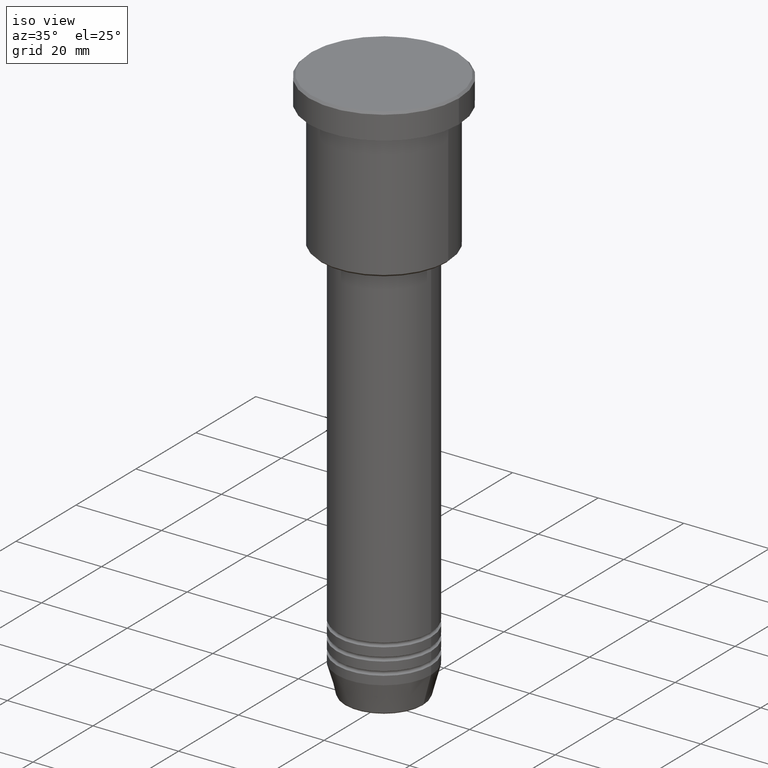
[diagram: clean part render]
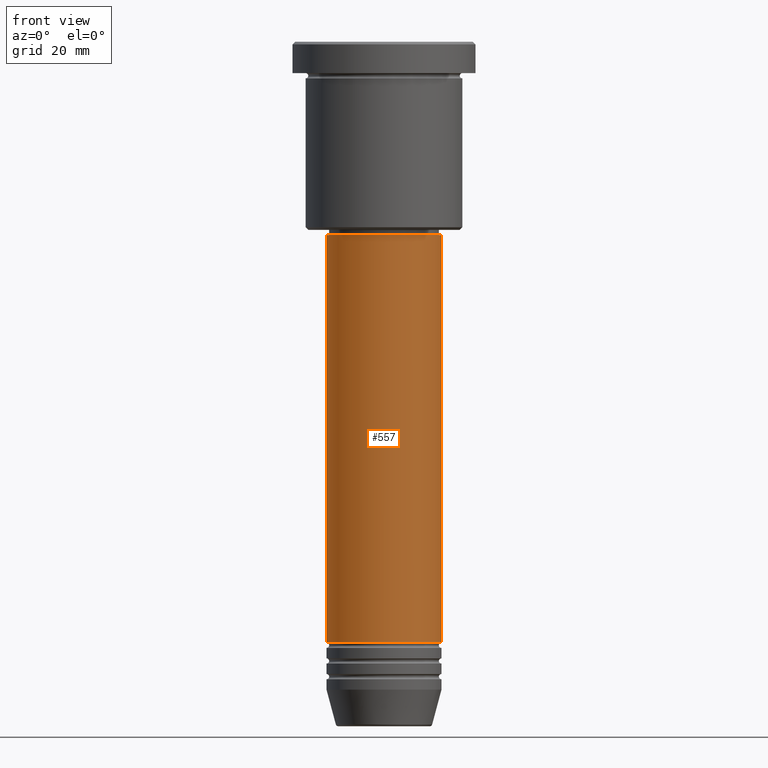
[diagram: tour spotlight — one face highlighted and labeled with its STEP entity id]
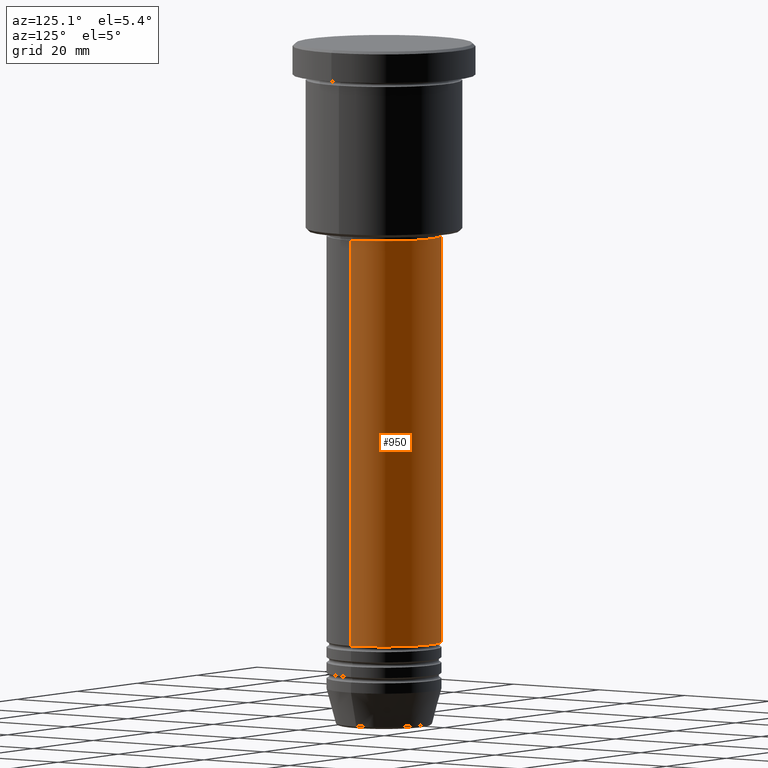
[diagram: tour spotlight — one face highlighted and labeled with its STEP entity id]
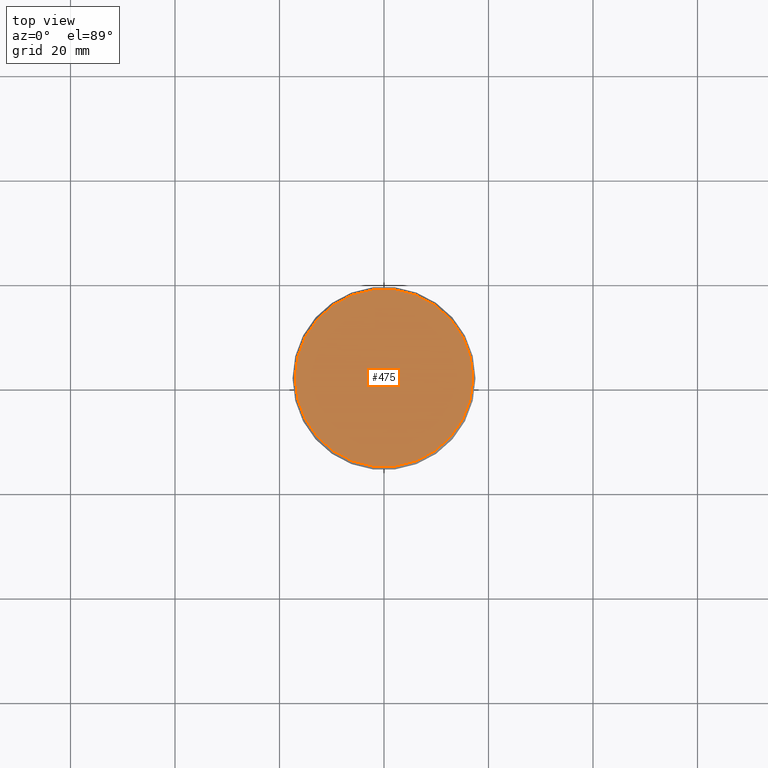
[diagram: tour spotlight — one face highlighted and labeled with its STEP entity id]
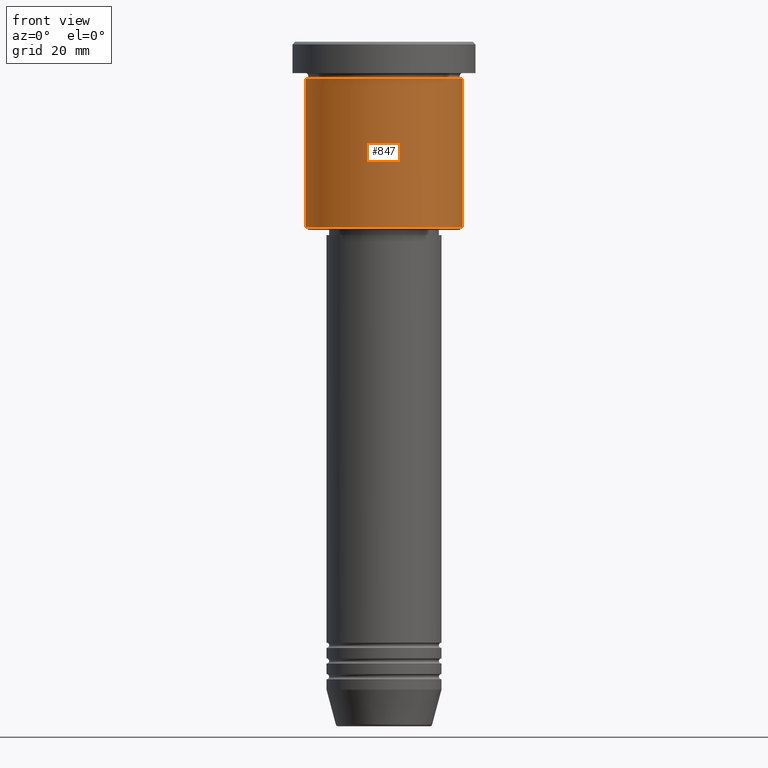
[diagram: tour spotlight — one face highlighted and labeled with its STEP entity id]
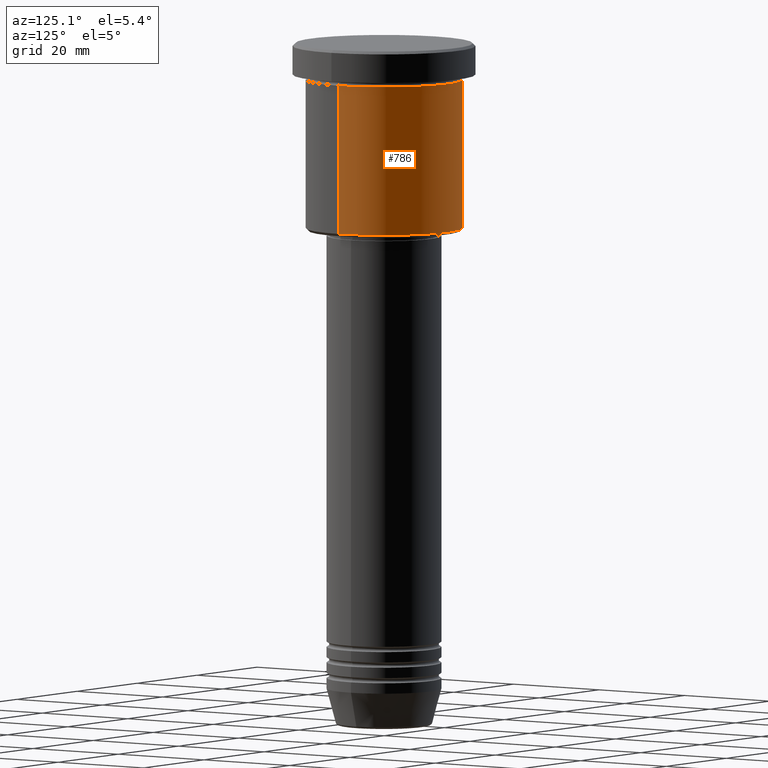
[diagram: tour spotlight — one face highlighted and labeled with its STEP entity id]
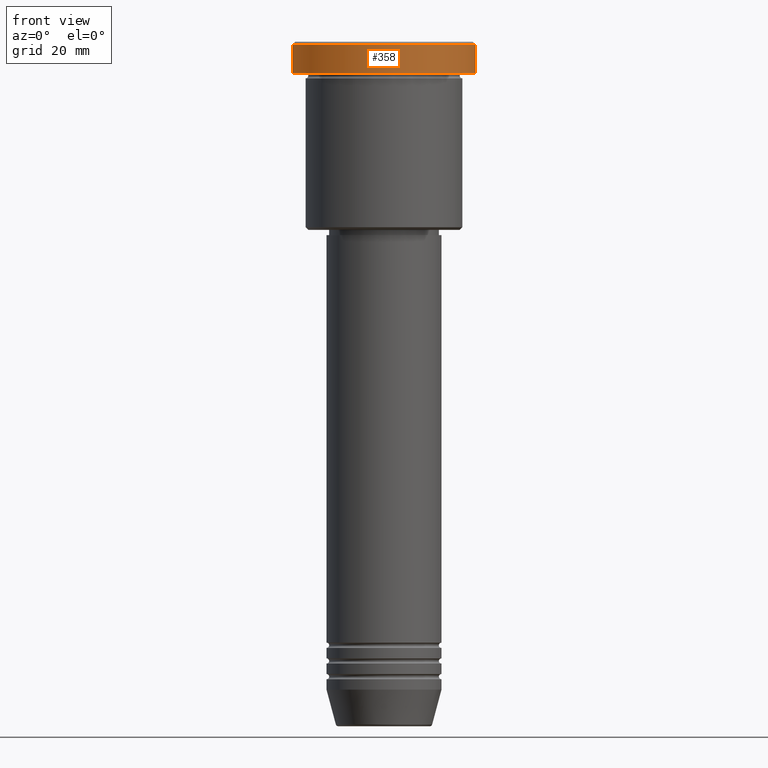
[diagram: tour spotlight — one face highlighted and labeled with its STEP entity id]
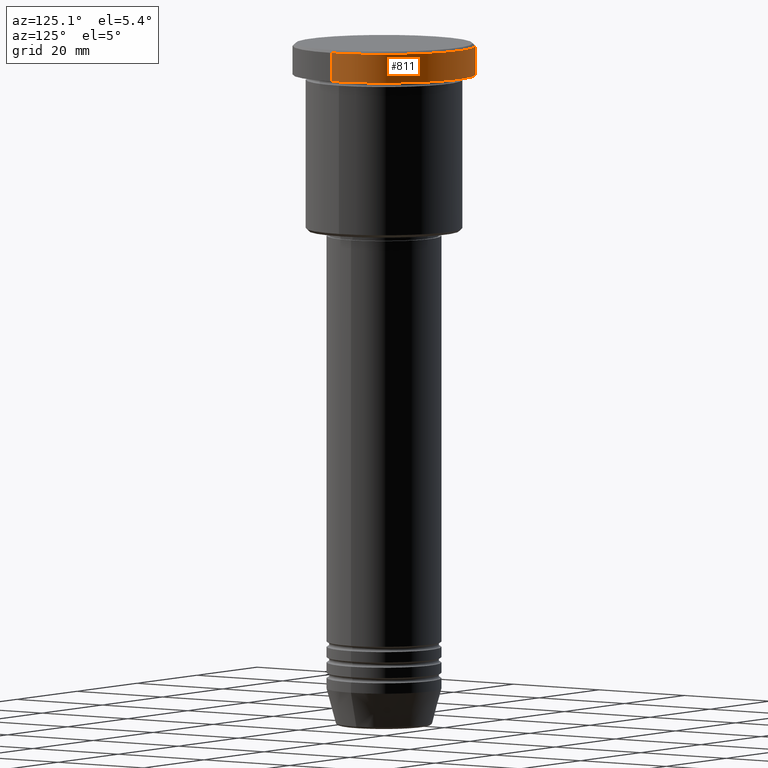
[diagram: tour spotlight — one face highlighted and labeled with its STEP entity id]
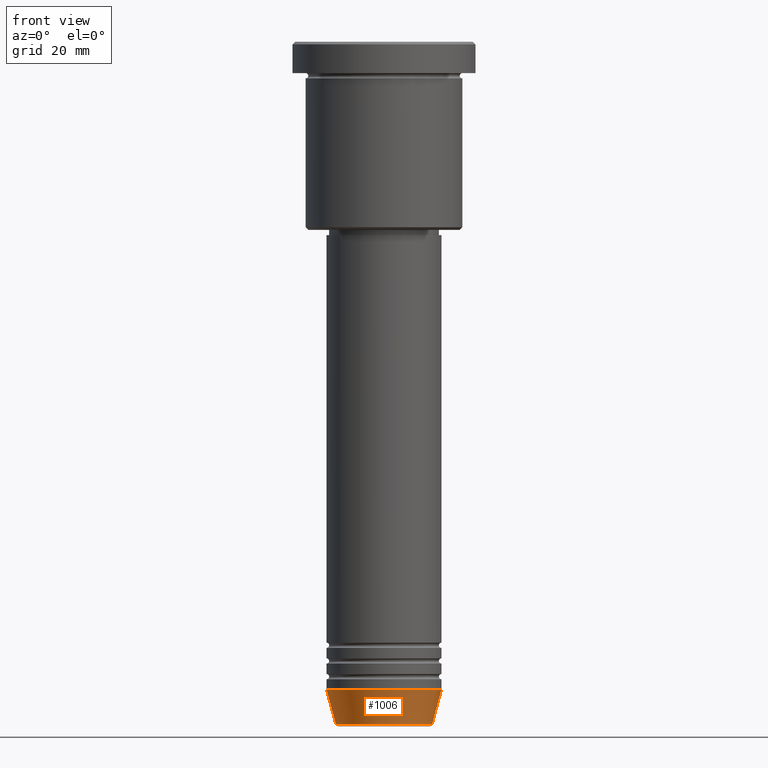
[diagram: tour spotlight — one face highlighted and labeled with its STEP entity id]
A machine part: a face-by-face anatomy tour. The part has 43 B-rep faces; the first image is the clean iso view, then the 8 largest visible faces are spotlighted one at a time (largest first), each with its STEP entity span.

Face 1 — front view, entity #557. In plain terms, the highlighted cylindrical surface (partial cylindrical patch) has radius 11 mm, axis along (-0, -0, 1).
Definition (entity closure, byte-faithful):
#19 = DIRECTION ( 'NONE',  ( -0.000000000000000000, -0.000000000000000000, 1.000000000000000000 ) ) ;
#20 = CARTESIAN_POINT ( 'NONE',  ( 11.00000000000000000, 0.000000000000000000, -37.00000000000000000 ) ) ;
#125 = CARTESIAN_POINT ( 'NONE',  ( 11.00000000000000000, 0.000000000000000000, -114.9999999999999574 ) ) ;
#133 = CARTESIAN_POINT ( 'NONE',  ( -11.00000000000000000, 1.347111479062088405E-15, 0.000000000000000000 ) ) ;
#139 = DIRECTION ( 'NONE',  ( -0.000000000000000000, -0.000000000000000000, 1.000000000000000000 ) ) ;
#141 = ORIENTED_EDGE ( 'NONE', *, *, #877, .F. ) ;
#145 = VECTOR ( 'NONE', #337, 1000.000000000000000 ) ;
#149 = DIRECTION ( 'NONE',  ( 1.000000000000000000, 0.000000000000000000, 0.000000000000000000 ) ) ;
#150 = CIRCLE ( 'NONE', #266, 11.00000000000000000 ) ;
#162 = CARTESIAN_POINT ( 'NONE',  ( 11.00000000000000000, 0.000000000000000000, 0.000000000000000000 ) ) ;
#164 = CARTESIAN_POINT ( 'NONE',  ( -11.00000000000000000, 1.347111479062088405E-15, -114.9999999999999574 ) ) ;
#187 = VECTOR ( 'NONE', #857, 1000.000000000000000 ) ;
#206 = EDGE_CURVE ( 'NONE', #382, #466, #982, .T. ) ;
#215 = EDGE_LOOP ( 'NONE', ( #1100, #462, #1034, #141 ) ) ;
#266 = AXIS2_PLACEMENT_3D ( 'NONE', #302, #19, #669 ) ;
#302 = CARTESIAN_POINT ( 'NONE',  ( 0.000000000000000000, 0.000000000000000000, -37.00000000000000000 ) ) ;
#320 = DIRECTION ( 'NONE',  ( -0.000000000000000000, -0.000000000000000000, 1.000000000000000000 ) ) ;
#337 = DIRECTION ( 'NONE',  ( -0.000000000000000000, -0.000000000000000000, 1.000000000000000000 ) ) ;
#381 = VERTEX_POINT ( 'NONE', #1019 ) ;
#382 = VERTEX_POINT ( 'NONE', #125 ) ;
#445 = EDGE_CURVE ( 'NONE', #1143, #381, #756, .T. ) ;
#462 = ORIENTED_EDGE ( 'NONE', *, *, #529, .T. ) ;
#466 = VERTEX_POINT ( 'NONE', #20 ) ;
#489 = CYLINDRICAL_SURFACE ( 'NONE', #734, 11.00000000000000000 ) ;
#497 = DIRECTION ( 'NONE',  ( 1.000000000000000000, 0.000000000000000000, 0.000000000000000000 ) ) ;
#529 = EDGE_CURVE ( 'NONE', #1143, #382, #924, .T. ) ;
#557 = ADVANCED_FACE ( 'NONE', ( #779 ), #489, .T. ) ;
#669 = DIRECTION ( 'NONE',  ( 1.000000000000000000, 0.000000000000000000, 0.000000000000000000 ) ) ;
#734 = AXIS2_PLACEMENT_3D ( 'NONE', #861, #320, #149 ) ;
#756 = LINE ( 'NONE', #133, #187 ) ;
#779 = FACE_OUTER_BOUND ( 'NONE', #215, .T. ) ;
#857 = DIRECTION ( 'NONE',  ( -0.000000000000000000, -0.000000000000000000, 1.000000000000000000 ) ) ;
#861 = CARTESIAN_POINT ( 'NONE',  ( 0.000000000000000000, 0.000000000000000000, 0.000000000000000000 ) ) ;
#877 = EDGE_CURVE ( 'NONE', #381, #466, #150, .T. ) ;
#924 = CIRCLE ( 'NONE', #1066, 11.00000000000000000 ) ;
#982 = LINE ( 'NONE', #162, #145 ) ;
#1019 = CARTESIAN_POINT ( 'NONE',  ( -11.00000000000000000, 1.347111479062088405E-15, -37.00000000000000000 ) ) ;
#1034 = ORIENTED_EDGE ( 'NONE', *, *, #206, .T. ) ;
#1066 = AXIS2_PLACEMENT_3D ( 'NONE', #1131, #139, #497 ) ;
#1100 = ORIENTED_EDGE ( 'NONE', *, *, #445, .F. ) ;
#1131 = CARTESIAN_POINT ( 'NONE',  ( 0.000000000000000000, 0.000000000000000000, -114.9999999999999574 ) ) ;
#1143 = VERTEX_POINT ( 'NONE', #164 ) ;

Face 2 — auxiliary view, entity #950. In plain terms, the highlighted cylindrical surface (partial cylindrical patch) has radius 11 mm, axis along (-0, -0, 1).
Definition (entity closure, byte-faithful):
#20 = CARTESIAN_POINT ( 'NONE',  ( 11.00000000000000000, 0.000000000000000000, -37.00000000000000000 ) ) ;
#117 = DIRECTION ( 'NONE',  ( -0.000000000000000000, -0.000000000000000000, 1.000000000000000000 ) ) ;
#125 = CARTESIAN_POINT ( 'NONE',  ( 11.00000000000000000, 0.000000000000000000, -114.9999999999999574 ) ) ;
#133 = CARTESIAN_POINT ( 'NONE',  ( -11.00000000000000000, 1.347111479062088405E-15, 0.000000000000000000 ) ) ;
#145 = VECTOR ( 'NONE', #337, 1000.000000000000000 ) ;
#162 = CARTESIAN_POINT ( 'NONE',  ( 11.00000000000000000, 0.000000000000000000, 0.000000000000000000 ) ) ;
#164 = CARTESIAN_POINT ( 'NONE',  ( -11.00000000000000000, 1.347111479062088405E-15, -114.9999999999999574 ) ) ;
#179 = EDGE_CURVE ( 'NONE', #466, #381, #262, .T. ) ;
#187 = VECTOR ( 'NONE', #857, 1000.000000000000000 ) ;
#206 = EDGE_CURVE ( 'NONE', #382, #466, #982, .T. ) ;
#262 = CIRCLE ( 'NONE', #941, 11.00000000000000000 ) ;
#283 = ORIENTED_EDGE ( 'NONE', *, *, #730, .T. ) ;
#337 = DIRECTION ( 'NONE',  ( -0.000000000000000000, -0.000000000000000000, 1.000000000000000000 ) ) ;
#352 = AXIS2_PLACEMENT_3D ( 'NONE', #419, #1003, #791 ) ;
#353 = AXIS2_PLACEMENT_3D ( 'NONE', #490, #117, #479 ) ;
#381 = VERTEX_POINT ( 'NONE', #1019 ) ;
#382 = VERTEX_POINT ( 'NONE', #125 ) ;
#419 = CARTESIAN_POINT ( 'NONE',  ( 0.000000000000000000, 0.000000000000000000, -114.9999999999999574 ) ) ;
#445 = EDGE_CURVE ( 'NONE', #1143, #381, #756, .T. ) ;
#466 = VERTEX_POINT ( 'NONE', #20 ) ;
#479 = DIRECTION ( 'NONE',  ( 1.000000000000000000, 0.000000000000000000, 0.000000000000000000 ) ) ;
#482 = EDGE_LOOP ( 'NONE', ( #283, #621, #598, #725 ) ) ;
#490 = CARTESIAN_POINT ( 'NONE',  ( 0.000000000000000000, 0.000000000000000000, 0.000000000000000000 ) ) ;
#564 = FACE_OUTER_BOUND ( 'NONE', #482, .T. ) ;
#598 = ORIENTED_EDGE ( 'NONE', *, *, #179, .F. ) ;
#621 = ORIENTED_EDGE ( 'NONE', *, *, #445, .T. ) ;
#725 = ORIENTED_EDGE ( 'NONE', *, *, #206, .F. ) ;
#730 = EDGE_CURVE ( 'NONE', #382, #1143, #735, .T. ) ;
#735 = CIRCLE ( 'NONE', #352, 11.00000000000000000 ) ;
#756 = LINE ( 'NONE', #133, #187 ) ;
#791 = DIRECTION ( 'NONE',  ( 1.000000000000000000, 0.000000000000000000, 0.000000000000000000 ) ) ;
#793 = CARTESIAN_POINT ( 'NONE',  ( 0.000000000000000000, 0.000000000000000000, -37.00000000000000000 ) ) ;
#857 = DIRECTION ( 'NONE',  ( -0.000000000000000000, -0.000000000000000000, 1.000000000000000000 ) ) ;
#941 = AXIS2_PLACEMENT_3D ( 'NONE', #793, #1148, #966 ) ;
#947 = CYLINDRICAL_SURFACE ( 'NONE', #353, 11.00000000000000000 ) ;
#950 = ADVANCED_FACE ( 'NONE', ( #564 ), #947, .T. ) ;
#966 = DIRECTION ( 'NONE',  ( 1.000000000000000000, 0.000000000000000000, 0.000000000000000000 ) ) ;
#982 = LINE ( 'NONE', #162, #145 ) ;
#1003 = DIRECTION ( 'NONE',  ( -0.000000000000000000, -0.000000000000000000, 1.000000000000000000 ) ) ;
#1019 = CARTESIAN_POINT ( 'NONE',  ( -11.00000000000000000, 1.347111479062088405E-15, -37.00000000000000000 ) ) ;
#1143 = VERTEX_POINT ( 'NONE', #164 ) ;
#1148 = DIRECTION ( 'NONE',  ( -0.000000000000000000, -0.000000000000000000, 1.000000000000000000 ) ) ;

Face 3 — top view, entity #475. In plain terms, the highlighted planar face has unit normal (0, -0, 1).
Definition (entity closure, byte-faithful):
#57 = DIRECTION ( 'NONE',  ( 1.000000000000000000, 0.000000000000000000, 0.000000000000000000 ) ) ;
#110 = CIRCLE ( 'NONE', #776, 17.00000000000001421 ) ;
#118 = DIRECTION ( 'NONE',  ( 0.000000000000000000, -0.000000000000000000, 1.000000000000000000 ) ) ;
#181 = CARTESIAN_POINT ( 'NONE',  ( 0.000000000000000000, 0.000000000000000000, 0.000000000000000000 ) ) ;
#248 = DIRECTION ( 'NONE',  ( 1.000000000000000000, 0.000000000000000000, 0.000000000000000000 ) ) ;
#468 = AXIS2_PLACEMENT_3D ( 'NONE', #959, #118, #57 ) ;
#475 = ADVANCED_FACE ( 'NONE', ( #1042 ), #854, .T. ) ;
#590 = CIRCLE ( 'NONE', #695, 17.00000000000001421 ) ;
#618 = CARTESIAN_POINT ( 'NONE',  ( 17.00000000000001421, 2.112515728529185250E-15, 0.000000000000000000 ) ) ;
#647 = VERTEX_POINT ( 'NONE', #1062 ) ;
#666 = EDGE_CURVE ( 'NONE', #684, #647, #590, .T. ) ;
#684 = VERTEX_POINT ( 'NONE', #618 ) ;
#687 = DIRECTION ( 'NONE',  ( 1.000000000000000000, 0.000000000000000000, 0.000000000000000000 ) ) ;
#692 = DIRECTION ( 'NONE',  ( -0.000000000000000000, -0.000000000000000000, 1.000000000000000000 ) ) ;
#695 = AXIS2_PLACEMENT_3D ( 'NONE', #181, #888, #687 ) ;
#776 = AXIS2_PLACEMENT_3D ( 'NONE', #1150, #692, #248 ) ;
#854 = PLANE ( 'NONE',  #468 ) ;
#888 = DIRECTION ( 'NONE',  ( -0.000000000000000000, -0.000000000000000000, 1.000000000000000000 ) ) ;
#934 = EDGE_LOOP ( 'NONE', ( #1050, #1082 ) ) ;
#959 = CARTESIAN_POINT ( 'NONE',  ( 0.000000000000000000, 0.000000000000000000, 0.000000000000000000 ) ) ;
#1042 = FACE_OUTER_BOUND ( 'NONE', #934, .T. ) ;
#1050 = ORIENTED_EDGE ( 'NONE', *, *, #1130, .T. ) ;
#1062 = CARTESIAN_POINT ( 'NONE',  ( -17.00000000000001421, 0.000000000000000000, 0.000000000000000000 ) ) ;
#1082 = ORIENTED_EDGE ( 'NONE', *, *, #666, .T. ) ;
#1130 = EDGE_CURVE ( 'NONE', #647, #684, #110, .T. ) ;
#1150 = CARTESIAN_POINT ( 'NONE',  ( 0.000000000000000000, 0.000000000000000000, 0.000000000000000000 ) ) ;

Face 4 — front view, entity #847. In plain terms, the highlighted cylindrical surface (partial cylindrical patch) has radius 15 mm, axis along (-0, -0, 1).
Definition (entity closure, byte-faithful):
#17 = FACE_OUTER_BOUND ( 'NONE', #1127, .T. ) ;
#21 = EDGE_CURVE ( 'NONE', #651, #301, #1012, .T. ) ;
#29 = CIRCLE ( 'NONE', #637, 15.00000000000000000 ) ;
#73 = VERTEX_POINT ( 'NONE', #820 ) ;
#153 = EDGE_CURVE ( 'NONE', #301, #1010, #806, .T. ) ;
#155 = ORIENTED_EDGE ( 'NONE', *, *, #153, .T. ) ;
#213 = ORIENTED_EDGE ( 'NONE', *, *, #1111, .F. ) ;
#279 = CARTESIAN_POINT ( 'NONE',  ( 0.000000000000000000, 0.000000000000000000, 0.000000000000000000 ) ) ;
#288 = CYLINDRICAL_SURFACE ( 'NONE', #845, 15.00000000000000000 ) ;
#301 = VERTEX_POINT ( 'NONE', #708 ) ;
#318 = CARTESIAN_POINT ( 'NONE',  ( 0.000000000000000000, 0.000000000000000000, -35.49999999999996447 ) ) ;
#324 = CARTESIAN_POINT ( 'NONE',  ( -15.00000000000000000, 1.836970198721029589E-15, -35.49999999999996447 ) ) ;
#326 = LINE ( 'NONE', #583, #800 ) ;
#346 = ORIENTED_EDGE ( 'NONE', *, *, #21, .T. ) ;
#349 = DIRECTION ( 'NONE',  ( -0.000000000000000000, -0.000000000000000000, 1.000000000000000000 ) ) ;
#373 = DIRECTION ( 'NONE',  ( 1.000000000000000000, 0.000000000000000000, 0.000000000000000000 ) ) ;
#433 = DIRECTION ( 'NONE',  ( -1.000000000000000000, 0.000000000000000000, 0.000000000000000000 ) ) ;
#508 = ORIENTED_EDGE ( 'NONE', *, *, #818, .F. ) ;
#583 = CARTESIAN_POINT ( 'NONE',  ( -15.00000000000000000, 1.836970198721029589E-15, 0.000000000000000000 ) ) ;
#617 = DIRECTION ( 'NONE',  ( -0.000000000000000000, -0.000000000000000000, 1.000000000000000000 ) ) ;
#632 = DIRECTION ( 'NONE',  ( -0.000000000000000000, -0.000000000000000000, 1.000000000000000000 ) ) ;
#637 = AXIS2_PLACEMENT_3D ( 'NONE', #652, #940, #373 ) ;
#651 = VERTEX_POINT ( 'NONE', #324 ) ;
#652 = CARTESIAN_POINT ( 'NONE',  ( 0.000000000000000000, 0.000000000000000000, -6.999999999999995559 ) ) ;
#708 = CARTESIAN_POINT ( 'NONE',  ( 15.00000000000000000, 0.000000000000000000, -35.49999999999996447 ) ) ;
#800 = VECTOR ( 'NONE', #984, 1000.000000000000000 ) ;
#806 = LINE ( 'NONE', #907, #892 ) ;
#818 = EDGE_CURVE ( 'NONE', #73, #1010, #29, .T. ) ;
#820 = CARTESIAN_POINT ( 'NONE',  ( -15.00000000000000000, 1.836970198721029589E-15, -6.999999999999995559 ) ) ;
#845 = AXIS2_PLACEMENT_3D ( 'NONE', #279, #632, #931 ) ;
#847 = ADVANCED_FACE ( 'NONE', ( #17 ), #288, .T. ) ;
#883 = CARTESIAN_POINT ( 'NONE',  ( 15.00000000000000000, 0.000000000000000000, -6.999999999999995559 ) ) ;
#892 = VECTOR ( 'NONE', #617, 1000.000000000000000 ) ;
#907 = CARTESIAN_POINT ( 'NONE',  ( 15.00000000000000000, 0.000000000000000000, 0.000000000000000000 ) ) ;
#931 = DIRECTION ( 'NONE',  ( 1.000000000000000000, 0.000000000000000000, 0.000000000000000000 ) ) ;
#940 = DIRECTION ( 'NONE',  ( -0.000000000000000000, -0.000000000000000000, 1.000000000000000000 ) ) ;
#984 = DIRECTION ( 'NONE',  ( -0.000000000000000000, -0.000000000000000000, 1.000000000000000000 ) ) ;
#1010 = VERTEX_POINT ( 'NONE', #883 ) ;
#1012 = CIRCLE ( 'NONE', #1065, 15.00000000000000000 ) ;
#1065 = AXIS2_PLACEMENT_3D ( 'NONE', #318, #349, #433 ) ;
#1111 = EDGE_CURVE ( 'NONE', #651, #73, #326, .T. ) ;
#1127 = EDGE_LOOP ( 'NONE', ( #213, #346, #155, #508 ) ) ;

Face 5 — auxiliary view, entity #786. In plain terms, the highlighted cylindrical surface (partial cylindrical patch) has radius 15 mm, axis along (-0, -0, 1).
Definition (entity closure, byte-faithful):
#26 = CIRCLE ( 'NONE', #690, 15.00000000000000000 ) ;
#64 = EDGE_CURVE ( 'NONE', #301, #651, #26, .T. ) ;
#73 = VERTEX_POINT ( 'NONE', #820 ) ;
#91 = AXIS2_PLACEMENT_3D ( 'NONE', #1113, #827, #1105 ) ;
#153 = EDGE_CURVE ( 'NONE', #301, #1010, #806, .T. ) ;
#278 = ORIENTED_EDGE ( 'NONE', *, *, #64, .T. ) ;
#291 = CYLINDRICAL_SURFACE ( 'NONE', #91, 15.00000000000000000 ) ;
#301 = VERTEX_POINT ( 'NONE', #708 ) ;
#314 = EDGE_LOOP ( 'NONE', ( #278, #1149, #440, #904 ) ) ;
#324 = CARTESIAN_POINT ( 'NONE',  ( -15.00000000000000000, 1.836970198721029589E-15, -35.49999999999996447 ) ) ;
#326 = LINE ( 'NONE', #583, #800 ) ;
#428 = EDGE_CURVE ( 'NONE', #1010, #73, #447, .T. ) ;
#440 = ORIENTED_EDGE ( 'NONE', *, *, #428, .F. ) ;
#447 = CIRCLE ( 'NONE', #537, 15.00000000000000000 ) ;
#459 = DIRECTION ( 'NONE',  ( -1.000000000000000000, 0.000000000000000000, 0.000000000000000000 ) ) ;
#537 = AXIS2_PLACEMENT_3D ( 'NONE', #665, #1138, #1036 ) ;
#583 = CARTESIAN_POINT ( 'NONE',  ( -15.00000000000000000, 1.836970198721029589E-15, 0.000000000000000000 ) ) ;
#609 = CARTESIAN_POINT ( 'NONE',  ( 0.000000000000000000, 0.000000000000000000, -35.49999999999996447 ) ) ;
#617 = DIRECTION ( 'NONE',  ( -0.000000000000000000, -0.000000000000000000, 1.000000000000000000 ) ) ;
#651 = VERTEX_POINT ( 'NONE', #324 ) ;
#665 = CARTESIAN_POINT ( 'NONE',  ( 0.000000000000000000, 0.000000000000000000, -6.999999999999995559 ) ) ;
#690 = AXIS2_PLACEMENT_3D ( 'NONE', #609, #1015, #459 ) ;
#708 = CARTESIAN_POINT ( 'NONE',  ( 15.00000000000000000, 0.000000000000000000, -35.49999999999996447 ) ) ;
#786 = ADVANCED_FACE ( 'NONE', ( #1029 ), #291, .T. ) ;
#800 = VECTOR ( 'NONE', #984, 1000.000000000000000 ) ;
#806 = LINE ( 'NONE', #907, #892 ) ;
#820 = CARTESIAN_POINT ( 'NONE',  ( -15.00000000000000000, 1.836970198721029589E-15, -6.999999999999995559 ) ) ;
#827 = DIRECTION ( 'NONE',  ( -0.000000000000000000, -0.000000000000000000, 1.000000000000000000 ) ) ;
#883 = CARTESIAN_POINT ( 'NONE',  ( 15.00000000000000000, 0.000000000000000000, -6.999999999999995559 ) ) ;
#892 = VECTOR ( 'NONE', #617, 1000.000000000000000 ) ;
#904 = ORIENTED_EDGE ( 'NONE', *, *, #153, .F. ) ;
#907 = CARTESIAN_POINT ( 'NONE',  ( 15.00000000000000000, 0.000000000000000000, 0.000000000000000000 ) ) ;
#984 = DIRECTION ( 'NONE',  ( -0.000000000000000000, -0.000000000000000000, 1.000000000000000000 ) ) ;
#1010 = VERTEX_POINT ( 'NONE', #883 ) ;
#1015 = DIRECTION ( 'NONE',  ( -0.000000000000000000, -0.000000000000000000, 1.000000000000000000 ) ) ;
#1029 = FACE_OUTER_BOUND ( 'NONE', #314, .T. ) ;
#1036 = DIRECTION ( 'NONE',  ( 1.000000000000000000, 0.000000000000000000, 0.000000000000000000 ) ) ;
#1105 = DIRECTION ( 'NONE',  ( 1.000000000000000000, 0.000000000000000000, 0.000000000000000000 ) ) ;
#1111 = EDGE_CURVE ( 'NONE', #651, #73, #326, .T. ) ;
#1113 = CARTESIAN_POINT ( 'NONE',  ( 0.000000000000000000, 0.000000000000000000, 0.000000000000000000 ) ) ;
#1138 = DIRECTION ( 'NONE',  ( -0.000000000000000000, -0.000000000000000000, 1.000000000000000000 ) ) ;
#1149 = ORIENTED_EDGE ( 'NONE', *, *, #1111, .T. ) ;

Face 6 — front view, entity #358. In plain terms, the highlighted cylindrical surface (partial cylindrical patch) has radius 17.5 mm, axis along (-0, -0, 1).
Definition (entity closure, byte-faithful):
#82 = FACE_OUTER_BOUND ( 'NONE', #120, .T. ) ;
#120 = EDGE_LOOP ( 'NONE', ( #501, #391, #178, #582 ) ) ;
#178 = ORIENTED_EDGE ( 'NONE', *, *, #1052, .T. ) ;
#180 = DIRECTION ( 'NONE',  ( -0.000000000000000000, -0.000000000000000000, 1.000000000000000000 ) ) ;
#193 = DIRECTION ( 'NONE',  ( 1.000000000000000000, 0.000000000000000000, 0.000000000000000000 ) ) ;
#240 = DIRECTION ( 'NONE',  ( -0.000000000000000000, -0.000000000000000000, 1.000000000000000000 ) ) ;
#292 = EDGE_CURVE ( 'NONE', #577, #844, #1061, .T. ) ;
#323 = CYLINDRICAL_SURFACE ( 'NONE', #1047, 17.50000000000000000 ) ;
#358 = ADVANCED_FACE ( 'NONE', ( #82 ), #323, .T. ) ;
#388 = CIRCLE ( 'NONE', #1067, 17.50000000000000000 ) ;
#391 = ORIENTED_EDGE ( 'NONE', *, *, #743, .T. ) ;
#431 = CARTESIAN_POINT ( 'NONE',  ( 0.000000000000000000, 0.000000000000000000, 0.000000000000000000 ) ) ;
#436 = DIRECTION ( 'NONE',  ( -0.000000000000000000, -0.000000000000000000, 1.000000000000000000 ) ) ;
#438 = DIRECTION ( 'NONE',  ( 1.000000000000000000, 0.000000000000000000, 0.000000000000000000 ) ) ;
#501 = ORIENTED_EDGE ( 'NONE', *, *, #292, .F. ) ;
#509 = CARTESIAN_POINT ( 'NONE',  ( 17.50000000000000000, 0.000000000000000000, 0.000000000000000000 ) ) ;
#517 = CARTESIAN_POINT ( 'NONE',  ( 17.50000000000000000, 0.000000000000000000, -5.999999999999995559 ) ) ;
#542 = VERTEX_POINT ( 'NONE', #517 ) ;
#549 = CARTESIAN_POINT ( 'NONE',  ( -17.50000000000000000, 2.143131898507868248E-15, -5.999999999999995559 ) ) ;
#551 = CARTESIAN_POINT ( 'NONE',  ( 17.50000000000000000, 0.000000000000000000, -0.5000000000000003331 ) ) ;
#577 = VERTEX_POINT ( 'NONE', #549 ) ;
#582 = ORIENTED_EDGE ( 'NONE', *, *, #804, .T. ) ;
#601 = DIRECTION ( 'NONE',  ( 1.000000000000000000, 0.000000000000000000, 0.000000000000000000 ) ) ;
#610 = VERTEX_POINT ( 'NONE', #551 ) ;
#696 = CARTESIAN_POINT ( 'NONE',  ( 0.000000000000000000, 0.000000000000000000, -5.999999999999995559 ) ) ;
#719 = CIRCLE ( 'NONE', #926, 17.50000000000000000 ) ;
#728 = CARTESIAN_POINT ( 'NONE',  ( -17.50000000000000000, 2.143131898507868248E-15, -0.5000000000000003331 ) ) ;
#743 = EDGE_CURVE ( 'NONE', #577, #542, #719, .T. ) ;
#804 = EDGE_CURVE ( 'NONE', #610, #844, #388, .T. ) ;
#844 = VERTEX_POINT ( 'NONE', #728 ) ;
#848 = DIRECTION ( 'NONE',  ( 0.000000000000000000, 0.000000000000000000, -1.000000000000000000 ) ) ;
#897 = CARTESIAN_POINT ( 'NONE',  ( -17.50000000000000000, 2.143131898507868248E-15, 0.000000000000000000 ) ) ;
#926 = AXIS2_PLACEMENT_3D ( 'NONE', #696, #1081, #601 ) ;
#942 = VECTOR ( 'NONE', #180, 1000.000000000000000 ) ;
#1047 = AXIS2_PLACEMENT_3D ( 'NONE', #431, #240, #438 ) ;
#1052 = EDGE_CURVE ( 'NONE', #542, #610, #1055, .T. ) ;
#1055 = LINE ( 'NONE', #509, #1120 ) ;
#1061 = LINE ( 'NONE', #897, #942 ) ;
#1067 = AXIS2_PLACEMENT_3D ( 'NONE', #1180, #848, #193 ) ;
#1081 = DIRECTION ( 'NONE',  ( -0.000000000000000000, -0.000000000000000000, 1.000000000000000000 ) ) ;
#1120 = VECTOR ( 'NONE', #436, 1000.000000000000000 ) ;
#1180 = CARTESIAN_POINT ( 'NONE',  ( 0.000000000000000000, 0.000000000000000000, -0.5000000000000003331 ) ) ;

Face 7 — auxiliary view, entity #811. In plain terms, the highlighted cylindrical surface (partial cylindrical patch) has radius 17.5 mm, axis along (-0, -0, 1).
Definition (entity closure, byte-faithful):
#62 = DIRECTION ( 'NONE',  ( -0.000000000000000000, -0.000000000000000000, 1.000000000000000000 ) ) ;
#84 = ORIENTED_EDGE ( 'NONE', *, *, #1052, .F. ) ;
#102 = DIRECTION ( 'NONE',  ( -0.000000000000000000, -0.000000000000000000, 1.000000000000000000 ) ) ;
#143 = DIRECTION ( 'NONE',  ( 1.000000000000000000, 0.000000000000000000, 0.000000000000000000 ) ) ;
#180 = DIRECTION ( 'NONE',  ( -0.000000000000000000, -0.000000000000000000, 1.000000000000000000 ) ) ;
#246 = AXIS2_PLACEMENT_3D ( 'NONE', #876, #345, #143 ) ;
#292 = EDGE_CURVE ( 'NONE', #577, #844, #1061, .T. ) ;
#303 = EDGE_CURVE ( 'NONE', #542, #577, #751, .T. ) ;
#331 = ORIENTED_EDGE ( 'NONE', *, *, #1069, .T. ) ;
#345 = DIRECTION ( 'NONE',  ( 0.000000000000000000, 0.000000000000000000, -1.000000000000000000 ) ) ;
#436 = DIRECTION ( 'NONE',  ( -0.000000000000000000, -0.000000000000000000, 1.000000000000000000 ) ) ;
#509 = CARTESIAN_POINT ( 'NONE',  ( 17.50000000000000000, 0.000000000000000000, 0.000000000000000000 ) ) ;
#510 = CARTESIAN_POINT ( 'NONE',  ( 0.000000000000000000, 0.000000000000000000, -5.999999999999995559 ) ) ;
#517 = CARTESIAN_POINT ( 'NONE',  ( 17.50000000000000000, 0.000000000000000000, -5.999999999999995559 ) ) ;
#542 = VERTEX_POINT ( 'NONE', #517 ) ;
#549 = CARTESIAN_POINT ( 'NONE',  ( -17.50000000000000000, 2.143131898507868248E-15, -5.999999999999995559 ) ) ;
#551 = CARTESIAN_POINT ( 'NONE',  ( 17.50000000000000000, 0.000000000000000000, -0.5000000000000003331 ) ) ;
#577 = VERTEX_POINT ( 'NONE', #549 ) ;
#610 = VERTEX_POINT ( 'NONE', #551 ) ;
#641 = DIRECTION ( 'NONE',  ( 1.000000000000000000, 0.000000000000000000, 0.000000000000000000 ) ) ;
#717 = AXIS2_PLACEMENT_3D ( 'NONE', #510, #62, #1072 ) ;
#728 = CARTESIAN_POINT ( 'NONE',  ( -17.50000000000000000, 2.143131898507868248E-15, -0.5000000000000003331 ) ) ;
#751 = CIRCLE ( 'NONE', #717, 17.50000000000000000 ) ;
#754 = CIRCLE ( 'NONE', #246, 17.50000000000000000 ) ;
#772 = ORIENTED_EDGE ( 'NONE', *, *, #303, .T. ) ;
#811 = ADVANCED_FACE ( 'NONE', ( #921 ), #832, .T. ) ;
#832 = CYLINDRICAL_SURFACE ( 'NONE', #1156, 17.50000000000000000 ) ;
#844 = VERTEX_POINT ( 'NONE', #728 ) ;
#852 = EDGE_LOOP ( 'NONE', ( #772, #1000, #331, #84 ) ) ;
#876 = CARTESIAN_POINT ( 'NONE',  ( 0.000000000000000000, 0.000000000000000000, -0.5000000000000003331 ) ) ;
#897 = CARTESIAN_POINT ( 'NONE',  ( -17.50000000000000000, 2.143131898507868248E-15, 0.000000000000000000 ) ) ;
#921 = FACE_OUTER_BOUND ( 'NONE', #852, .T. ) ;
#937 = CARTESIAN_POINT ( 'NONE',  ( 0.000000000000000000, 0.000000000000000000, 0.000000000000000000 ) ) ;
#942 = VECTOR ( 'NONE', #180, 1000.000000000000000 ) ;
#1000 = ORIENTED_EDGE ( 'NONE', *, *, #292, .T. ) ;
#1052 = EDGE_CURVE ( 'NONE', #542, #610, #1055, .T. ) ;
#1055 = LINE ( 'NONE', #509, #1120 ) ;
#1061 = LINE ( 'NONE', #897, #942 ) ;
#1069 = EDGE_CURVE ( 'NONE', #844, #610, #754, .T. ) ;
#1072 = DIRECTION ( 'NONE',  ( 1.000000000000000000, 0.000000000000000000, 0.000000000000000000 ) ) ;
#1120 = VECTOR ( 'NONE', #436, 1000.000000000000000 ) ;
#1156 = AXIS2_PLACEMENT_3D ( 'NONE', #937, #102, #641 ) ;

Face 8 — front view, entity #1006. In plain terms, the highlighted conical surface has half-angle 15 deg.
Definition (entity closure, byte-faithful):
#16 = VERTEX_POINT ( 'NONE', #1140 ) ;
#44 = ORIENTED_EDGE ( 'NONE', *, *, #775, .T. ) ;
#148 = AXIS2_PLACEMENT_3D ( 'NONE', #532, #839, #915 ) ;
#165 = VERTEX_POINT ( 'NONE', #961 ) ;
#228 = DIRECTION ( 'NONE',  ( -0.000000000000000000, -0.000000000000000000, 1.000000000000000000 ) ) ;
#304 = CARTESIAN_POINT ( 'NONE',  ( 11.00000000000000000, 0.000000000000000000, -124.0000000000000000 ) ) ;
#348 = CARTESIAN_POINT ( 'NONE',  ( -9.223655072137187716, 1.238341722557647004E-15, -130.6294095225512422 ) ) ;
#355 = LINE ( 'NONE', #1110, #506 ) ;
#370 = CIRCLE ( 'NONE', #148, 9.223655072137187716 ) ;
#375 = ORIENTED_EDGE ( 'NONE', *, *, #777, .T. ) ;
#379 = DIRECTION ( 'NONE',  ( 0.2588190451025213501, 0.000000000000000000, 0.9659258262890680902 ) ) ;
#390 = CIRCLE ( 'NONE', #526, 11.00000000000000000 ) ;
#394 = FACE_OUTER_BOUND ( 'NONE', #729, .T. ) ;
#444 = CARTESIAN_POINT ( 'NONE',  ( 0.000000000000000000, 0.000000000000000000, -124.0000000000000000 ) ) ;
#473 = DIRECTION ( 'NONE',  ( 1.000000000000000000, 0.000000000000000000, 0.000000000000000000 ) ) ;
#505 = ORIENTED_EDGE ( 'NONE', *, *, #948, .F. ) ;
#506 = VECTOR ( 'NONE', #379, 1000.000000000000000 ) ;
#526 = AXIS2_PLACEMENT_3D ( 'NONE', #444, #544, #473 ) ;
#527 = DIRECTION ( 'NONE',  ( 1.000000000000000000, 0.000000000000000000, 0.000000000000000000 ) ) ;
#532 = CARTESIAN_POINT ( 'NONE',  ( 0.000000000000000000, 0.000000000000000000, -130.6294095225512422 ) ) ;
#544 = DIRECTION ( 'NONE',  ( -0.000000000000000000, -0.000000000000000000, 1.000000000000000000 ) ) ;
#591 = AXIS2_PLACEMENT_3D ( 'NONE', #1126, #228, #527 ) ;
#657 = VECTOR ( 'NONE', #664, 1000.000000000000000 ) ;
#664 = DIRECTION ( 'NONE',  ( -0.2588190451025213501, 3.169619151431772337E-17, 0.9659258262890680902 ) ) ;
#697 = CONICAL_SURFACE ( 'NONE', #591, 11.00000000000000000, 0.2617993877991500740 ) ;
#702 = VERTEX_POINT ( 'NONE', #348 ) ;
#729 = EDGE_LOOP ( 'NONE', ( #505, #375, #44, #875 ) ) ;
#775 = EDGE_CURVE ( 'NONE', #165, #928, #355, .T. ) ;
#777 = EDGE_CURVE ( 'NONE', #702, #165, #370, .T. ) ;
#839 = DIRECTION ( 'NONE',  ( -0.000000000000000000, -0.000000000000000000, 1.000000000000000000 ) ) ;
#846 = EDGE_CURVE ( 'NONE', #16, #928, #390, .T. ) ;
#875 = ORIENTED_EDGE ( 'NONE', *, *, #846, .F. ) ;
#915 = DIRECTION ( 'NONE',  ( 1.000000000000000000, 0.000000000000000000, 0.000000000000000000 ) ) ;
#928 = VERTEX_POINT ( 'NONE', #304 ) ;
#946 = LINE ( 'NONE', #1137, #657 ) ;
#948 = EDGE_CURVE ( 'NONE', #702, #16, #946, .T. ) ;
#961 = CARTESIAN_POINT ( 'NONE',  ( 9.223655072137187716, 0.000000000000000000, -130.6294095225512422 ) ) ;
#1006 = ADVANCED_FACE ( 'NONE', ( #394 ), #697, .T. ) ;
#1110 = CARTESIAN_POINT ( 'NONE',  ( 11.00000000000000000, 0.000000000000000000, -124.0000000000000000 ) ) ;
#1126 = CARTESIAN_POINT ( 'NONE',  ( 0.000000000000000000, 0.000000000000000000, -124.0000000000000000 ) ) ;
#1137 = CARTESIAN_POINT ( 'NONE',  ( -11.00000000000000000, 1.347111479062088405E-15, -124.0000000000000000 ) ) ;
#1140 = CARTESIAN_POINT ( 'NONE',  ( -11.00000000000000000, 1.347111479062088405E-15, -124.0000000000000000 ) ) ;